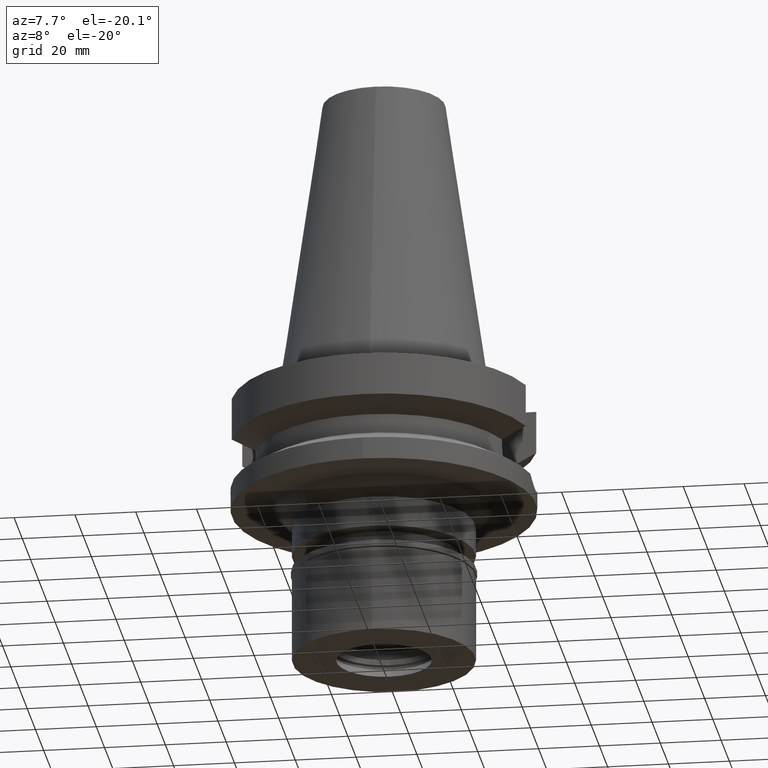
[diagram: clean part render]
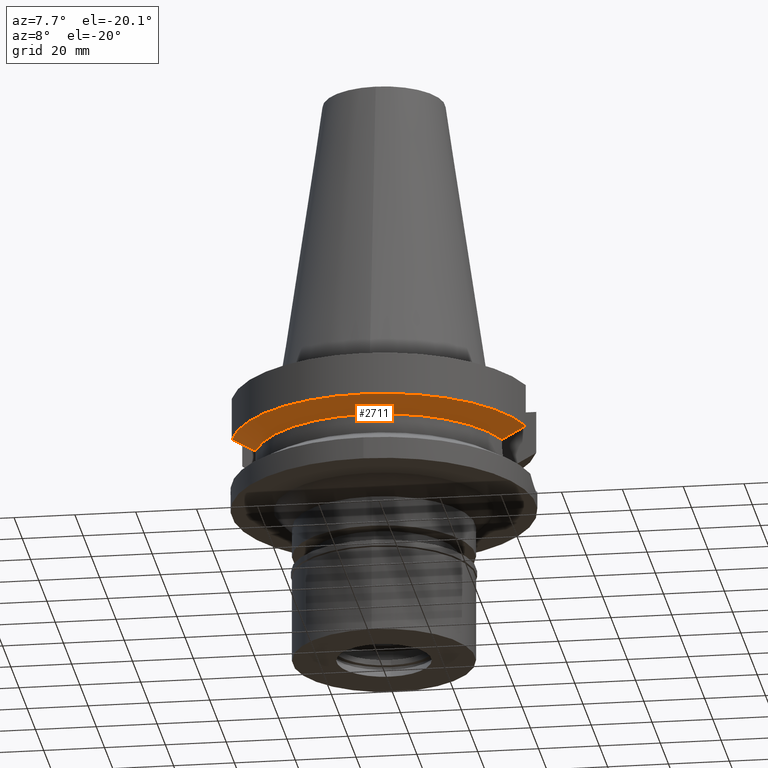
[diagram: same view with one face highlighted and labeled with its STEP entity id]
A machine part, auxiliary view. The second image highlights one B-rep face of the part: STEP entity #2711.
In plain terms, the highlighted conical surface has half-angle 60 deg.
Its self-contained STEP definition (entity closure, byte-faithful):
#7 = VERTEX_POINT ( 'NONE', #76 ) ;
#66 = EDGE_CURVE ( 'NONE', #7, #2121, #129, .T. ) ;
#73 = FACE_OUTER_BOUND ( 'NONE', #2127, .T. ) ;
#76 = CARTESIAN_POINT ( 'NONE',  ( 40.51083188481999997, -12.84999999999999964, -19.99281925464999787 ) ) ;
#88 = CARTESIAN_POINT ( 'NONE',  ( 0.0000000000000000000, 1.006319759053999930E-14, -19.99281925464999787 ) ) ;
#93 = CIRCLE ( 'NONE', #2246, 50.00000000000000000 ) ;
#129 = CIRCLE ( 'NONE', #910, 42.50000000000002132 ) ;
#489 = CARTESIAN_POINT ( 'NONE',  ( -48.32056913527000575, -12.85000383049999861, -15.66265792242000110 ) ) ;
#572 = EDGE_CURVE ( 'NONE', #1052, #2121, #1576, .T. ) ;
#596 = DIRECTION ( 'NONE',  ( 0.9531960443486575674, -0.3023529411764863672, 0.0000000000000000000 ) ) ;
#659 = CARTESIAN_POINT ( 'NONE',  ( -40.51083300404000198, -12.84999647154000080, -19.99284633316000281 ) ) ;
#720 = DIRECTION ( 'NONE',  ( 0.0000000000000000000, 1.000000000000000000, 0.0000000000000000000 ) ) ;
#769 = EDGE_CURVE ( 'NONE', #1052, #2579, #93, .T. ) ;
#778 = CARTESIAN_POINT ( 'NONE',  ( 48.32057015392000210, -12.84999999999999964, -15.66269223573000069 ) ) ;
#903 = CARTESIAN_POINT ( 'NONE',  ( 48.32057015392000210, -12.84999999999999964, -15.66269223573000069 ) ) ;
#910 = AXIS2_PLACEMENT_3D ( 'NONE', #88, #2208, #596 ) ;
#1052 = VERTEX_POINT ( 'NONE', #489 ) ;
#1210 = CARTESIAN_POINT ( 'NONE',  ( 0.0000000000000000000, 1.006319759053999930E-14, -17.82775574519000017 ) ) ;
#1240 = CARTESIAN_POINT ( 'NONE',  ( 45.51179325991159175, -12.85000764405202744, -17.22987025056429644 ) ) ;
#1351 = ORIENTED_EDGE ( 'NONE', *, *, #572, .T. ) ;
#1450 = CARTESIAN_POINT ( 'NONE',  ( 40.51083188481999997, -12.84999999999999964, -19.99281925464999787 ) ) ;
#1452 = ORIENTED_EDGE ( 'NONE', *, *, #66, .F. ) ;
#1576 = B_SPLINE_CURVE_WITH_KNOTS ( 'NONE', 3,
 ( #2795, #1829, #2764, #2536 ),
 .UNSPECIFIED., .F., .F.,
 ( 4, 4 ),
 ( 0.0000000000000000000, 1.000000000000000000 ),
 .UNSPECIFIED. ) ;
#1606 = B_SPLINE_CURVE_WITH_KNOTS ( 'NONE', 3,
 ( #1450, #2638, #1240, #778 ),
 .UNSPECIFIED., .F., .F.,
 ( 4, 4 ),
 ( 0.0000000000000000000, 1.000000000000000000 ),
 .UNSPECIFIED. ) ;
#1698 = EDGE_CURVE ( 'NONE', #7, #2579, #1606, .T. ) ;
#1762 = AXIS2_PLACEMENT_3D ( 'NONE', #1210, #1884, #720 ) ;
#1829 = CARTESIAN_POINT ( 'NONE',  ( -45.51179775498621183, -12.85000765638809206, -17.22986777019057669 ) ) ;
#1884 = DIRECTION ( 'NONE',  ( 0.0000000000000000000, 0.0000000000000000000, 1.000000000000000000 ) ) ;
#2121 = VERTEX_POINT ( 'NONE', #659 ) ;
#2127 = EDGE_LOOP ( 'NONE', ( #1351, #1452, #2679, #2703 ) ) ;
#2208 = DIRECTION ( 'NONE',  ( 0.0000000000000000000, 0.0000000000000000000, -1.000000000000000000 ) ) ;
#2243 = CARTESIAN_POINT ( 'NONE',  ( 0.0000000000000000000, 1.006319759053999930E-14, -15.66269223573000069 ) ) ;
#2246 = AXIS2_PLACEMENT_3D ( 'NONE', #2243, #2394, #2949 ) ;
#2394 = DIRECTION ( 'NONE',  ( 0.0000000000000000000, 0.0000000000000000000, 1.000000000000000000 ) ) ;
#2413 = CONICAL_SURFACE ( 'NONE', #1762, 46.25000000000000000, 1.047197551196400456 ) ;
#2536 = CARTESIAN_POINT ( 'NONE',  ( -40.51083300404000198, -12.84999647154000080, -19.99284633316000281 ) ) ;
#2579 = VERTEX_POINT ( 'NONE', #903 ) ;
#2638 = CARTESIAN_POINT ( 'NONE',  ( 42.90862722228964543, -12.84999291142132627, -18.67324652865475443 ) ) ;
#2679 = ORIENTED_EDGE ( 'NONE', *, *, #1698, .T. ) ;
#2703 = ORIENTED_EDGE ( 'NONE', *, *, #769, .F. ) ;
#2711 = ADVANCED_FACE ( 'NONE', ( #73 ), #2413, .T. ) ;
#2764 = CARTESIAN_POINT ( 'NONE',  ( -42.90862358259560239, -12.84999293589595659, -18.67324855915067516 ) ) ;
#2795 = CARTESIAN_POINT ( 'NONE',  ( -48.32056913527000575, -12.85000383049999861, -15.66265792242000110 ) ) ;
#2949 = DIRECTION ( 'NONE',  ( 0.0000000000000000000, -1.000000000000000000, 0.0000000000000000000 ) ) ;